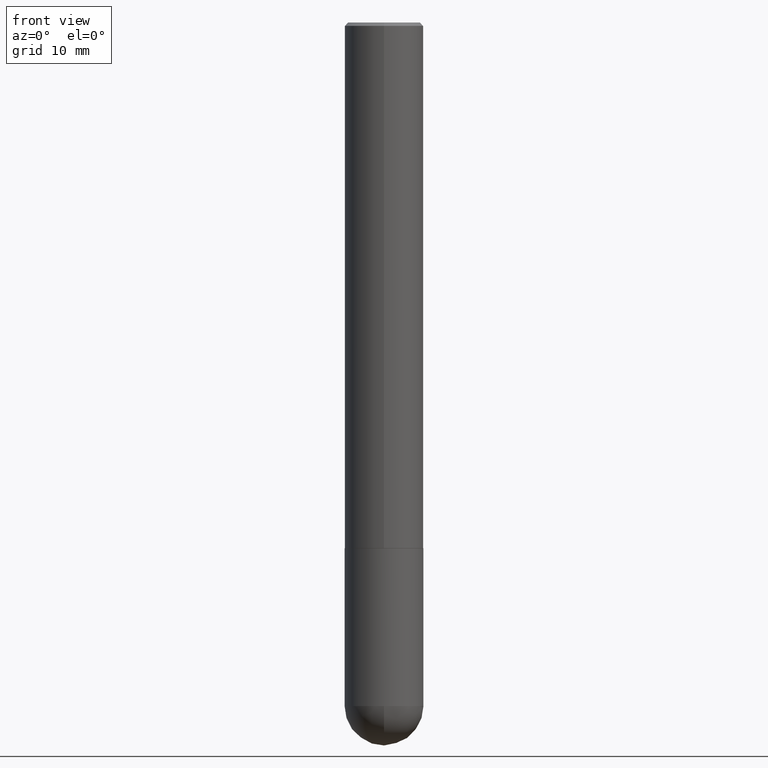
[diagram: clean part render]
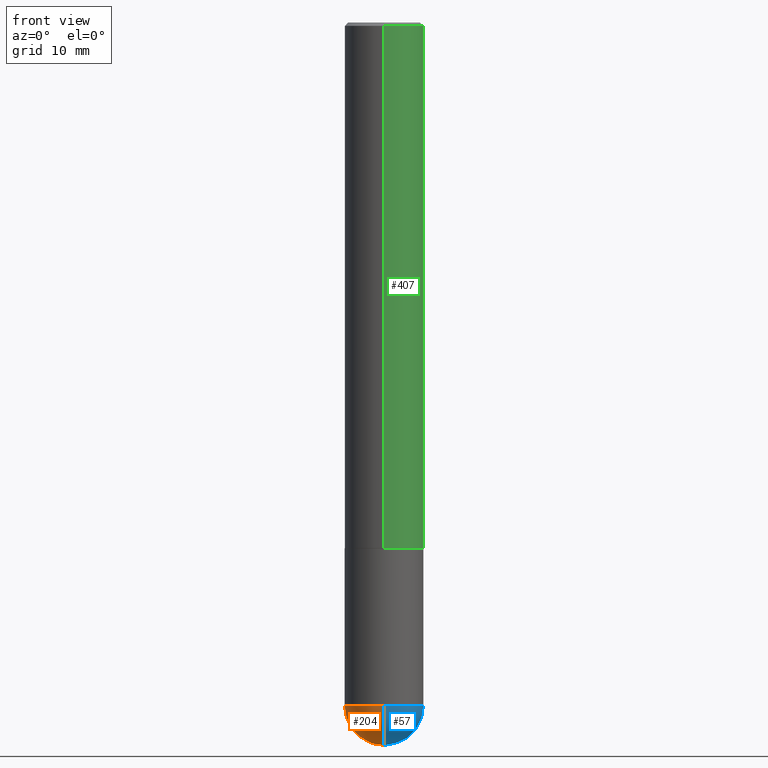
[diagram: same view with three faces highlighted in distinct colors, each labeled with its STEP entity id]
A machine part, front view with three faces highlighted in distinct colors.
Their STEP definitions:

[orange] entity #204 — the highlighted spherical surface has radius 5.9995 mm.
#1 = AXIS2_PLACEMENT_3D ( 'NONE', #88, #159, #226 ) ;
#12 = ORIENTED_EDGE ( 'NONE', *, *, #52, .F. ) ;
#13 = CARTESIAN_POINT ( 'NONE',  ( 1.026957149490729443E-28, -1.558027752357013406E-14, -4.330700000000000216 ) ) ;
#22 = DIRECTION ( 'NONE',  ( -1.000000000000000000, 6.982962677686265922E-15, -4.883557194083112901E-29 ) ) ;
#36 = AXIS2_PLACEMENT_3D ( 'NONE', #138, #172, #60 ) ;
#52 = EDGE_CURVE ( 'NONE', #74, #119, #409, .T. ) ;
#60 = DIRECTION ( 'NONE',  ( 1.000000000000000000, -6.982962677686265133E-15, 0.000000000000000000 ) ) ;
#65 = EDGE_CURVE ( 'NONE', #74, #228, #284, .T. ) ;
#66 = DIRECTION ( 'NONE',  ( 6.982962677686265922E-15, 1.000000000000000000, 0.000000000000000000 ) ) ;
#74 = VERTEX_POINT ( 'NONE', #13 ) ;
#86 = CIRCLE ( 'NONE', #36, 0.2361999999999999933 ) ;
#88 = CARTESIAN_POINT ( 'NONE',  ( 1.001297202692504215E-28, -1.429587034189326149E-14, -4.094500000000000028 ) ) ;
#92 = CARTESIAN_POINT ( 'NONE',  ( 9.681852249011155898E-29, -1.477005271003331337E-14, -4.094500000000000028 ) ) ;
#109 = CARTESIAN_POINT ( 'NONE',  ( 1.649375784469595330E-15, 0.2361999999999855882, -4.094500000000001805 ) ) ;
#111 = ORIENTED_EDGE ( 'NONE', *, *, #359, .F. ) ;
#119 = VERTEX_POINT ( 'NONE', #109 ) ;
#122 = CARTESIAN_POINT ( 'NONE',  ( -1.678301941865258773E-15, -0.2362000000000146760, -4.094499999999999140 ) ) ;
#138 = CARTESIAN_POINT ( 'NONE',  ( 1.001297202692504215E-28, -1.429587034189326149E-14, -4.094500000000000028 ) ) ;
#143 = AXIS2_PLACEMENT_3D ( 'NONE', #275, #22, #248 ) ;
#145 = EDGE_CURVE ( 'NONE', #355, #228, #86, .T. ) ;
#151 = ORIENTED_EDGE ( 'NONE', *, *, #145, .F. ) ;
#159 = DIRECTION ( 'NONE',  ( -2.445468806185136597E-29, 3.491481338843145583E-15, 1.000000000000000000 ) ) ;
#172 = DIRECTION ( 'NONE',  ( -2.445468806185136597E-29, 3.491481338843145583E-15, 1.000000000000000000 ) ) ;
#180 = AXIS2_PLACEMENT_3D ( 'NONE', #230, #356, #66 ) ;
#204 = ADVANCED_FACE ( 'NONE', ( #212 ), #405, .T. ) ;
#206 = EDGE_LOOP ( 'NONE', ( #12, #326, #151, #111 ) ) ;
#212 = FACE_OUTER_BOUND ( 'NONE', #206, .T. ) ;
#226 = DIRECTION ( 'NONE',  ( 1.000000000000000000, -6.982962677686265133E-15, 0.000000000000000000 ) ) ;
#228 = VERTEX_POINT ( 'NONE', #122 ) ;
#230 = CARTESIAN_POINT ( 'NONE',  ( 9.681852249011155898E-29, -1.477005271003331337E-14, -4.094500000000000028 ) ) ;
#248 = DIRECTION ( 'NONE',  ( 6.982962677686265922E-15, 1.000000000000000000, -4.626330217890364603E-15 ) ) ;
#251 = CARTESIAN_POINT ( 'NONE',  ( -0.2361999999999999933, -1.096801804149146287E-14, -4.094500000000000028 ) ) ;
#275 = CARTESIAN_POINT ( 'NONE',  ( 9.681852249011155898E-29, -1.477005271003331337E-14, -4.094500000000000028 ) ) ;
#284 = CIRCLE ( 'NONE', #338, 0.2362000000000002709 ) ;
#296 = DIRECTION ( 'NONE',  ( -7.105427357601001070E-15, -1.000000000000000000, 0.000000000000000000 ) ) ;
#320 = DIRECTION ( 'NONE',  ( -1.000000000000000000, 7.105427357601001070E-15, -4.926315508542082329E-29 ) ) ;
#326 = ORIENTED_EDGE ( 'NONE', *, *, #65, .T. ) ;
#338 = AXIS2_PLACEMENT_3D ( 'NONE', #92, #320, #296 ) ;
#340 = CIRCLE ( 'NONE', #1, 0.2361999999999999933 ) ;
#355 = VERTEX_POINT ( 'NONE', #251 ) ;
#356 = DIRECTION ( 'NONE',  ( 1.000000000000000000, -6.982962677686265922E-15, 4.883557194083112340E-29 ) ) ;
#359 = EDGE_CURVE ( 'NONE', #119, #355, #340, .T. ) ;
#405 = SPHERICAL_SURFACE ( 'NONE', #143, 0.2362000000000002709 ) ;
#409 = CIRCLE ( 'NONE', #180, 0.2362000000000002709 ) ;

[blue] entity #57 — the highlighted spherical surface has radius 5.9995 mm.
#13 = CARTESIAN_POINT ( 'NONE',  ( 1.026957149490729443E-28, -1.558027752357013406E-14, -4.330700000000000216 ) ) ;
#39 = SPHERICAL_SURFACE ( 'NONE', #146, 0.2362000000000002709 ) ;
#45 = AXIS2_PLACEMENT_3D ( 'NONE', #309, #276, #406 ) ;
#52 = EDGE_CURVE ( 'NONE', #74, #119, #409, .T. ) ;
#57 = ADVANCED_FACE ( 'NONE', ( #259 ), #39, .T. ) ;
#58 = CIRCLE ( 'NONE', #45, 0.2361999999999999933 ) ;
#62 = DIRECTION ( 'NONE',  ( 1.000000000000000000, -6.982962677686265133E-15, 0.000000000000000000 ) ) ;
#65 = EDGE_CURVE ( 'NONE', #74, #228, #284, .T. ) ;
#66 = DIRECTION ( 'NONE',  ( 6.982962677686265922E-15, 1.000000000000000000, 0.000000000000000000 ) ) ;
#71 = VERTEX_POINT ( 'NONE', #132 ) ;
#74 = VERTEX_POINT ( 'NONE', #13 ) ;
#92 = CARTESIAN_POINT ( 'NONE',  ( 9.681852249011155898E-29, -1.477005271003331337E-14, -4.094500000000000028 ) ) ;
#107 = EDGE_CURVE ( 'NONE', #71, #119, #214, .T. ) ;
#109 = CARTESIAN_POINT ( 'NONE',  ( 1.649375784469595330E-15, 0.2361999999999855882, -4.094500000000001805 ) ) ;
#114 = ORIENTED_EDGE ( 'NONE', *, *, #224, .F. ) ;
#119 = VERTEX_POINT ( 'NONE', #109 ) ;
#122 = CARTESIAN_POINT ( 'NONE',  ( -1.678301941865258773E-15, -0.2362000000000146760, -4.094499999999999140 ) ) ;
#132 = CARTESIAN_POINT ( 'NONE',  ( 0.2361999999999999933, -1.429569576782631264E-14, -4.094500000000000028 ) ) ;
#146 = AXIS2_PLACEMENT_3D ( 'NONE', #227, #387, #176 ) ;
#166 = CARTESIAN_POINT ( 'NONE',  ( 1.001297202692504215E-28, -1.429587034189326149E-14, -4.094500000000000028 ) ) ;
#176 = DIRECTION ( 'NONE',  ( 6.982962677686265922E-15, 1.000000000000000000, -4.626330217890364603E-15 ) ) ;
#178 = ORIENTED_EDGE ( 'NONE', *, *, #52, .T. ) ;
#180 = AXIS2_PLACEMENT_3D ( 'NONE', #230, #356, #66 ) ;
#211 = ORIENTED_EDGE ( 'NONE', *, *, #107, .F. ) ;
#214 = CIRCLE ( 'NONE', #370, 0.2361999999999999933 ) ;
#224 = EDGE_CURVE ( 'NONE', #228, #71, #58, .T. ) ;
#227 = CARTESIAN_POINT ( 'NONE',  ( 9.681852249011155898E-29, -1.477005271003331337E-14, -4.094500000000000028 ) ) ;
#228 = VERTEX_POINT ( 'NONE', #122 ) ;
#230 = CARTESIAN_POINT ( 'NONE',  ( 9.681852249011155898E-29, -1.477005271003331337E-14, -4.094500000000000028 ) ) ;
#259 = FACE_OUTER_BOUND ( 'NONE', #323, .T. ) ;
#267 = DIRECTION ( 'NONE',  ( -2.445468806185136597E-29, 3.491481338843145583E-15, 1.000000000000000000 ) ) ;
#276 = DIRECTION ( 'NONE',  ( -2.445468806185136597E-29, 3.491481338843145583E-15, 1.000000000000000000 ) ) ;
#284 = CIRCLE ( 'NONE', #338, 0.2362000000000002709 ) ;
#296 = DIRECTION ( 'NONE',  ( -7.105427357601001070E-15, -1.000000000000000000, 0.000000000000000000 ) ) ;
#302 = ORIENTED_EDGE ( 'NONE', *, *, #65, .F. ) ;
#309 = CARTESIAN_POINT ( 'NONE',  ( 1.001297202692504215E-28, -1.429587034189326149E-14, -4.094500000000000028 ) ) ;
#320 = DIRECTION ( 'NONE',  ( -1.000000000000000000, 7.105427357601001070E-15, -4.926315508542082329E-29 ) ) ;
#323 = EDGE_LOOP ( 'NONE', ( #302, #178, #211, #114 ) ) ;
#338 = AXIS2_PLACEMENT_3D ( 'NONE', #92, #320, #296 ) ;
#356 = DIRECTION ( 'NONE',  ( 1.000000000000000000, -6.982962677686265922E-15, 4.883557194083112340E-29 ) ) ;
#370 = AXIS2_PLACEMENT_3D ( 'NONE', #166, #267, #62 ) ;
#387 = DIRECTION ( 'NONE',  ( -1.000000000000000000, 6.982962677686265922E-15, -4.883557194083112901E-29 ) ) ;
#406 = DIRECTION ( 'NONE',  ( 1.000000000000000000, -6.982962677686265133E-15, 0.000000000000000000 ) ) ;
#409 = CIRCLE ( 'NONE', #180, 0.2362000000000002709 ) ;

[green] entity #407 — the highlighted cylindrical surface (partial cylindrical patch) has radius 5.9995 mm, axis along (-0, 0, 1).
#5 = FACE_OUTER_BOUND ( 'NONE', #63, .T. ) ;
#28 = DIRECTION ( 'NONE',  ( -6.982962677686265922E-15, -1.000000000000000000, 4.626330217890361448E-15 ) ) ;
#30 = CARTESIAN_POINT ( 'NONE',  ( -1.649375784469421978E-15, -0.2362000000000114008, -3.148599999999999177 ) ) ;
#33 = DIRECTION ( 'NONE',  ( -2.446209613660721864E-29, 3.490420460373964582E-15, 1.000000000000000000 ) ) ;
#34 = VERTEX_POINT ( 'NONE', #136 ) ;
#51 = LINE ( 'NONE', #186, #192 ) ;
#53 = DIRECTION ( 'NONE',  ( -6.982962677686265922E-15, -1.000000000000000000, 3.490420460373964977E-15 ) ) ;
#55 = DIRECTION ( 'NONE',  ( -2.446209613660721864E-29, 3.490420460373964582E-15, 1.000000000000000000 ) ) ;
#63 = EDGE_LOOP ( 'NONE', ( #237, #104, #368, #258 ) ) ;
#80 = VERTEX_POINT ( 'NONE', #223 ) ;
#87 = CIRCLE ( 'NONE', #398, 0.2362000000000004096 ) ;
#104 = ORIENTED_EDGE ( 'NONE', *, *, #246, .T. ) ;
#113 = EDGE_CURVE ( 'NONE', #243, #34, #408, .T. ) ;
#136 = CARTESIAN_POINT ( 'NONE',  ( 1.649375784469495934E-15, 0.2361999999999998545, -0.02000000000000087472 ) ) ;
#153 = DIRECTION ( 'NONE',  ( -2.446209613660722145E-29, 3.490420460373964582E-15, 1.000000000000000000 ) ) ;
#155 = AXIS2_PLACEMENT_3D ( 'NONE', #410, #250, #53 ) ;
#158 = CARTESIAN_POINT ( 'NONE',  ( -1.620449627073634487E-15, -0.2361999999999999933, -0.01999999999999922673 ) ) ;
#186 = CARTESIAN_POINT ( 'NONE',  ( -1.649375784469497117E-15, -0.2362000000000001598, 8.244373127403310428E-16 ) ) ;
#189 = CYLINDRICAL_SURFACE ( 'NONE', #155, 0.2362000000000001598 ) ;
#192 = VECTOR ( 'NONE', #153, 39.37007874015748143 ) ;
#198 = DIRECTION ( 'NONE',  ( -6.982962677686265922E-15, -1.000000000000000000, 3.487819265831412533E-15 ) ) ;
#216 = EDGE_CURVE ( 'NONE', #261, #243, #51, .T. ) ;
#223 = CARTESIAN_POINT ( 'NONE',  ( 1.678301941865397612E-15, 0.2361999999999894462, -3.148600000000001398 ) ) ;
#237 = ORIENTED_EDGE ( 'NONE', *, *, #310, .T. ) ;
#243 = VERTEX_POINT ( 'NONE', #158 ) ;
#246 = EDGE_CURVE ( 'NONE', #80, #34, #253, .T. ) ;
#250 = DIRECTION ( 'NONE',  ( -2.446209613660721864E-29, 3.490420460373964582E-15, 1.000000000000000000 ) ) ;
#253 = LINE ( 'NONE', #376, #301 ) ;
#258 = ORIENTED_EDGE ( 'NONE', *, *, #216, .F. ) ;
#261 = VERTEX_POINT ( 'NONE', #30 ) ;
#283 = AXIS2_PLACEMENT_3D ( 'NONE', #395, #33, #198 ) ;
#301 = VECTOR ( 'NONE', #412, 39.37007874015748143 ) ;
#310 = EDGE_CURVE ( 'NONE', #261, #80, #87, .T. ) ;
#319 = CARTESIAN_POINT ( 'NONE',  ( 7.702135589572149804E-29, -1.098993786153346755E-14, -3.148600000000000509 ) ) ;
#368 = ORIENTED_EDGE ( 'NONE', *, *, #113, .F. ) ;
#376 = CARTESIAN_POINT ( 'NONE',  ( 1.678301941865357577E-15, 0.2362000000000001598, -8.244373127403310428E-16 ) ) ;
#395 = CARTESIAN_POINT ( 'NONE',  ( 4.892419227321456446E-31, -6.980840920747946766E-17, -0.02000000000000005246 ) ) ;
#398 = AXIS2_PLACEMENT_3D ( 'NONE', #319, #55, #28 ) ;
#407 = ADVANCED_FACE ( 'NONE', ( #5 ), #189, .T. ) ;
#408 = CIRCLE ( 'NONE', #283, 0.2361999999999999378 ) ;
#410 = CARTESIAN_POINT ( 'NONE',  ( 0.000000000000000000, 0.000000000000000000, 0.000000000000000000 ) ) ;
#412 = DIRECTION ( 'NONE',  ( -2.446209613660722145E-29, 3.490420460373964582E-15, 1.000000000000000000 ) ) ;